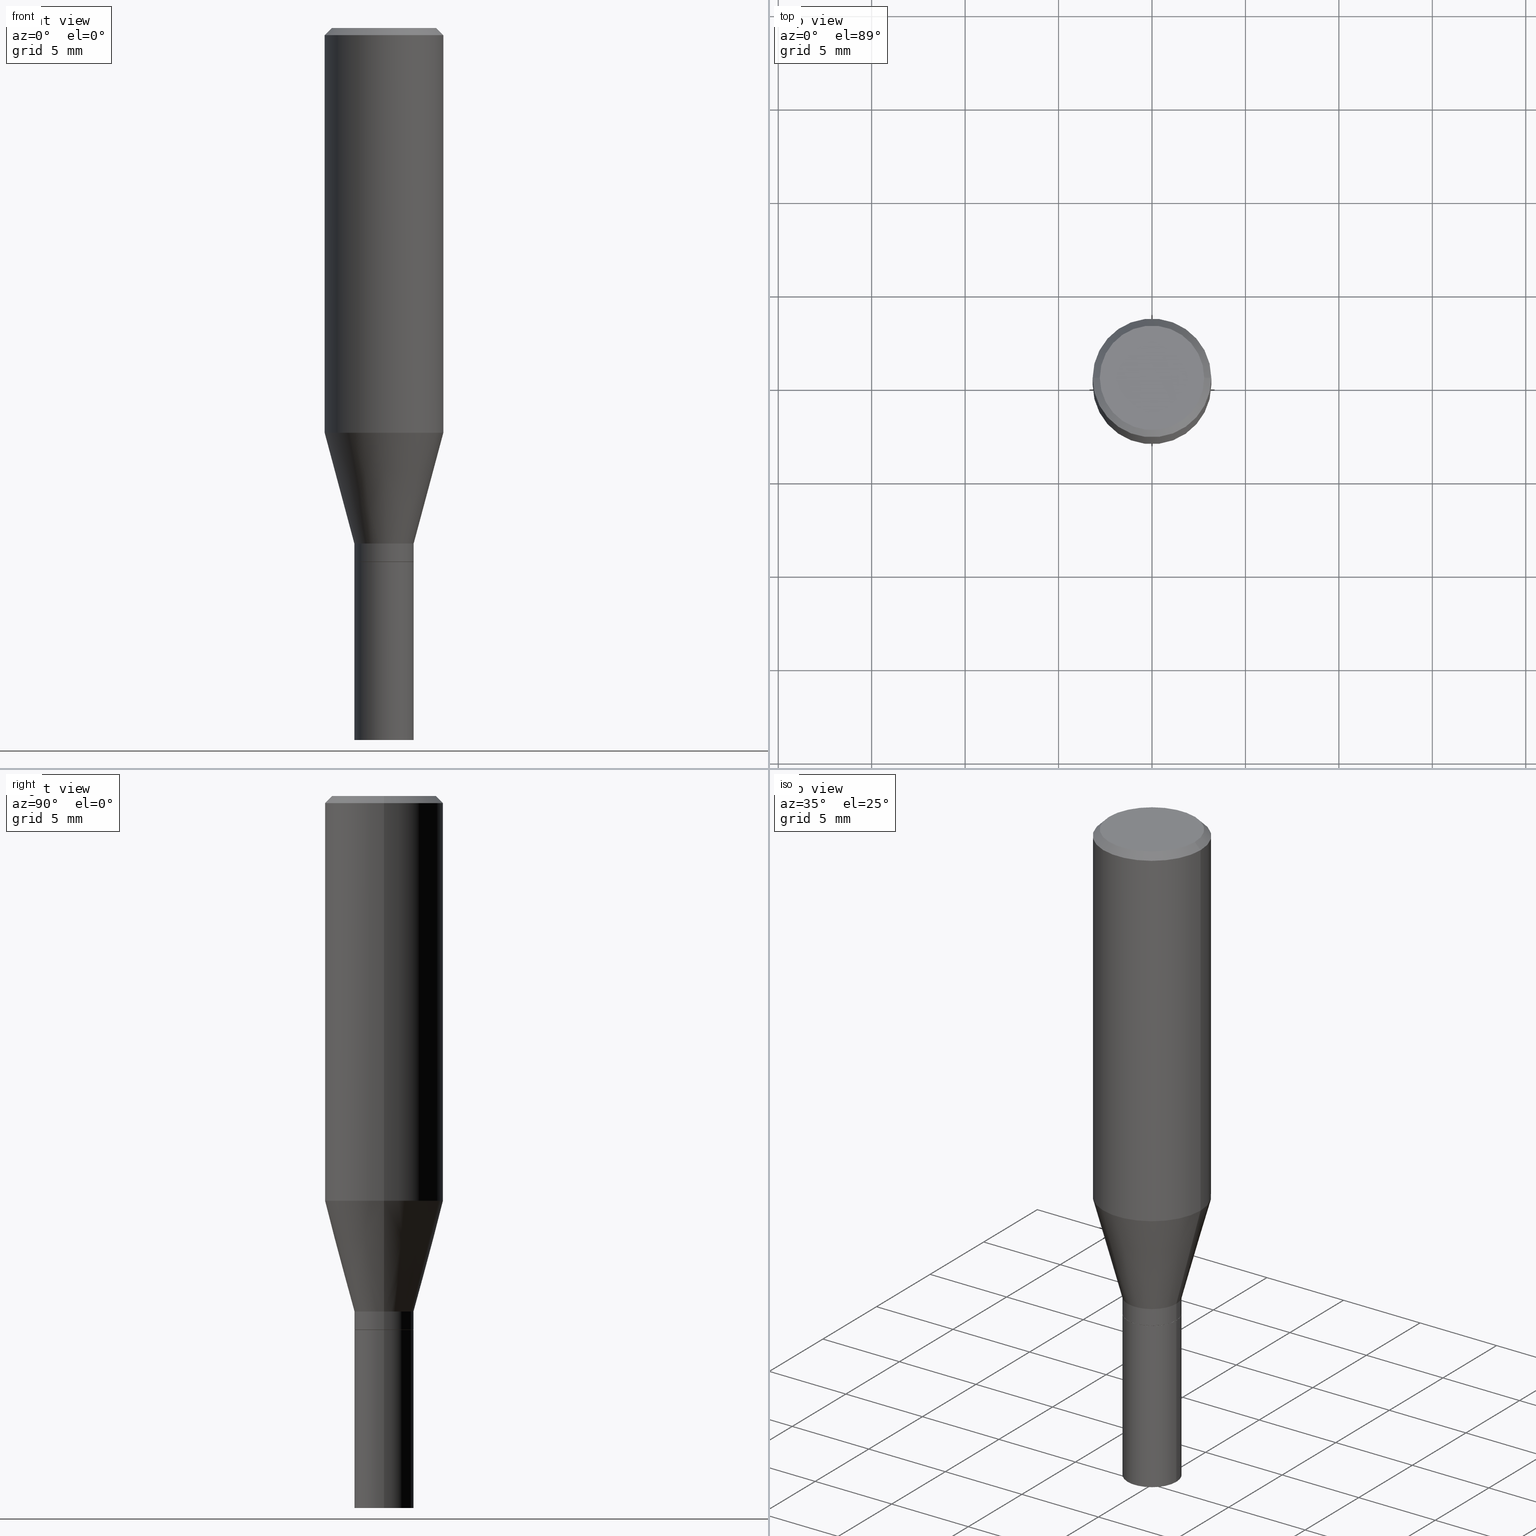
[diagram: canonical four-view strip — front | top / right | iso, engineering-drawing reading convention]
A machine part, canonical four-view strip (front | top / right | iso — engineering-drawing reading convention). The complete STEP part file that produces these views, byte-faithful:
ISO-10303-21;
HEADER;
FILE_DESCRIPTION (( 'STEP AP203' ),
    '1' );
FILE_NAME ('32260.STEP',
    '2024-03-13T16:36:29',
    ( '' ),
    ( '' ),
    'SwSTEP 2.0',
    'SolidWorks 2023',
    '' );
FILE_SCHEMA (( 'CONFIG_CONTROL_DESIGN' ));
ENDSEC;

DATA;
#1 = DIRECTION ( 'NONE',  ( 0.000000000000000000, 0.000000000000000000, 1.000000000000000000 ) ) ;
#2 = ORIENTED_EDGE ( 'NONE', *, *, #362, .F. ) ;
#3 = CYLINDRICAL_SURFACE ( 'NONE', #325, 0.06250000000000005551 ) ;
#4 = AXIS2_PLACEMENT_3D ( 'NONE', #72, #175, #300 ) ;
#5 = ORIENTED_EDGE ( 'NONE', *, *, #270, .F. ) ;
#6 = DATE_AND_TIME ( #348, #307 ) ;
#7 = MANIFOLD_SOLID_BREP ( 'Body-Move/Copy2[2]', #284 ) ;
#8 = ORIENTED_EDGE ( 'NONE', *, *, #135, .T. ) ;
#9 = CARTESIAN_POINT ( 'NONE',  ( 0.06199999999999999956, -4.360860192215087886E-15, -1.125000000000000222 ) ) ;
#10 = ORIENTED_EDGE ( 'NONE', *, *, #258, .F. ) ;
#11 = DIRECTION ( 'NONE',  ( -2.445468806185136597E-29, 3.491481338843145583E-15, 1.000000000000000000 ) ) ;
#12 = DIRECTION ( 'NONE',  ( 1.000000000000000000, -6.982962677686270655E-15, 0.000000000000000000 ) ) ;
#13 = VERTEX_POINT ( 'NONE', #326 ) ;
#14 = AXIS2_PLACEMENT_3D ( 'NONE', #81, #316, #425 ) ;
#15 = FACE_OUTER_BOUND ( 'NONE', #301, .T. ) ;
#16 = ORIENTED_EDGE ( 'NONE', *, *, #137, .T. ) ;
#17 = CYLINDRICAL_SURFACE ( 'NONE', #60, 0.06250000000000000000 ) ;
#18 = DIRECTION ( 'NONE',  ( -0.7071067811865656694, 7.493145998870420424E-15, 0.7071067811865294761 ) ) ;
#19 = CARTESIAN_POINT ( 'NONE',  ( 2.749929672555186430E-29, -3.926170765529117721E-15, -1.124500000000000055 ) ) ;
#20 = CARTESIAN_POINT ( 'NONE',  ( -0.06199999999999999956, -3.487380010027277507E-15, -1.125000000000000222 ) ) ;
#21 = EDGE_CURVE ( 'NONE', #188, #260, #208, .T. ) ;
#22 = VECTOR ( 'NONE', #247, 39.37007874015748143 ) ;
#23 = LOCAL_TIME ( 12, 36, 29.00000000000000000, #267 ) ;
#24 = ORIENTED_EDGE ( 'NONE', *, *, #450, .F. ) ;
#25 = PLANE ( 'NONE',  #446 ) ;
#26 = ORIENTED_EDGE ( 'NONE', *, *, #49, .T. ) ;
#27 = DIRECTION ( 'NONE',  ( 1.000000000000000000, -6.982962677686270655E-15, 0.000000000000000000 ) ) ;
#28 = VECTOR ( 'NONE', #94, 39.37007874015747433 ) ;
#29 = AXIS2_PLACEMENT_3D ( 'NONE', #199, #161, #240 ) ;
#30 = APPROVAL_DATE_TIME ( #368, #126 ) ;
#31 = ORIENTED_EDGE ( 'NONE', *, *, #227, .T. ) ;
#32 = EDGE_CURVE ( 'NONE', #386, #226, #349, .T. ) ;
#33 = AXIS2_PLACEMENT_3D ( 'NONE', #87, #50, #454 ) ;
#34 = EDGE_LOOP ( 'NONE', ( #191, #408, #31, #178 ) ) ;
#35 = CARTESIAN_POINT ( 'NONE',  ( 2.655779123517058654E-29, -3.791748733983656424E-15, -1.086000000000000076 ) ) ;
#36 = EDGE_LOOP ( 'NONE', ( #62, #334 ) ) ;
#37 = DATE_TIME_ROLE ( 'classification_date' ) ;
#38 = DIRECTION ( 'NONE',  ( -2.445468806185136597E-29, 3.491481338843145583E-15, 1.000000000000000000 ) ) ;
#39 = EDGE_LOOP ( 'NONE', ( #376, #373, #140, #296 ) ) ;
#40 = COORDINATED_UNIVERSAL_TIME_OFFSET ( 5, 0, .BEHIND. ) ;
#41 = LINE ( 'NONE', #9, #295 ) ;
#42 = EDGE_LOOP ( 'NONE', ( #439, #163 ) ) ;
#43 = DIRECTION ( 'NONE',  ( 1.000000000000000000, -6.982962677686266711E-15, 4.876176775795935793E-29 ) ) ;
#44 = CONICAL_SURFACE ( 'NONE', #427, 0.1250000000000000000, 0.7853981633974483900 ) ;
#45 = CARTESIAN_POINT ( 'NONE',  ( 0.06250000000000005551, -4.364351673553920638E-16, 3.047610484872462323E-30 ) ) ;
#46 = PRODUCT_DEFINITION_SHAPE ( 'NONE', 'NONE',  #286 ) ;
#47 = DIRECTION ( 'NONE',  ( 1.000000000000000000, -6.982962677686264344E-15, 0.000000000000000000 ) ) ;
#48 = LINE ( 'NONE', #89, #73 ) ;
#49 = EDGE_CURVE ( 'NONE', #386, #431, #218, .T. ) ;
#50 = DIRECTION ( 'NONE',  ( -2.445468806185136597E-29, 3.491481338843145583E-15, 1.000000000000000000 ) ) ;
#51 = CIRCLE ( 'NONE', #210, 0.06250000000000005551 ) ;
#52 = COORDINATED_UNIVERSAL_TIME_OFFSET ( 5, 0, .BEHIND. ) ;
#53 = EDGE_CURVE ( 'NONE', #346, #176, #127, .T. ) ;
#54 = ADVANCED_FACE ( 'NONE', ( #343 ), #445, .T. ) ;
#55 = LINE ( 'NONE', #291, #22 ) ;
#56 = ORIENTED_EDGE ( 'NONE', *, *, #49, .F. ) ;
#57 = EDGE_LOOP ( 'NONE', ( #311, #116, #230, #56 ) ) ;
#58 = CARTESIAN_POINT ( 'NONE',  ( 2.655779123517058654E-29, -3.791748733983656424E-15, -1.086000000000000076 ) ) ;
#59 = DATE_TIME_ROLE ( 'creation_date' ) ;
#60 = AXIS2_PLACEMENT_3D ( 'NONE', #317, #456, #43 ) ;
#61 = LENGTH_MEASURE_WITH_UNIT ( LENGTH_MEASURE( 0.02539999999999999897 ), #372 );
#62 = ORIENTED_EDGE ( 'NONE', *, *, #229, .F. ) ;
#63 = DIMENSIONAL_EXPONENTS ( 1.000000000000000000, 0.000000000000000000, 0.000000000000000000, 0.000000000000000000, 0.000000000000000000, 0.000000000000000000, 0.000000000000000000 ) ;
#64 = APPLICATION_CONTEXT ( 'configuration controlled 3d designs of mechanical parts and assemblies' ) ;
#65 = EDGE_LOOP ( 'NONE', ( #147, #306 ) ) ;
#66 = DIRECTION ( 'NONE',  ( -1.000000000000000000, 6.982962677686266711E-15, 0.000000000000000000 ) ) ;
#67 = CARTESIAN_POINT ( 'NONE',  ( 0.1250000000000000000, -3.850219959304365574E-15, -0.8527468245269461677 ) ) ;
#68 = ORIENTED_EDGE ( 'NONE', *, *, #32, .F. ) ;
#69 = DIRECTION ( 'NONE',  ( -2.445468806185136877E-29, 3.491481338843145188E-15, 1.000000000000000000 ) ) ;
#70 = DIRECTION ( 'NONE',  ( -2.445468806185136597E-29, 3.491481338843145583E-15, 1.000000000000000000 ) ) ;
#71 = AXIS2_PLACEMENT_3D ( 'NONE', #328, #1, #410 ) ;
#72 = CARTESIAN_POINT ( 'NONE',  ( 0.000000000000000000, 0.000000000000000000, 0.000000000000000000 ) ) ;
#73 = VECTOR ( 'NONE', #238, 39.37007874015748143 ) ;
#74 = ORIENTED_EDGE ( 'NONE', *, *, #258, .T. ) ;
#75 = CARTESIAN_POINT ( 'NONE',  ( 0.06250000000000000000, -4.364351673553930894E-15, -1.125000000000000222 ) ) ;
#76 = SECURITY_CLASSIFICATION_LEVEL ( 'unclassified' ) ;
#77 = PERSON_AND_ORGANIZATION_ROLE ( 'creator' ) ;
#78 = ORIENTED_EDGE ( 'NONE', *, *, #361, .T. ) ;
#79 = CARTESIAN_POINT ( 'NONE',  ( 3.668203209277705088E-31, -5.237222008264718399E-17, -0.01499999999999999944 ) ) ;
#80 = ORIENTED_EDGE ( 'NONE', *, *, #53, .T. ) ;
#81 = CARTESIAN_POINT ( 'NONE',  ( 2.655779123517058654E-29, -3.791748733983656424E-15, -1.086000000000000076 ) ) ;
#82 = ADVANCED_FACE ( 'NONE', ( #268 ), #397, .T. ) ;
#83 = FACE_OUTER_BOUND ( 'NONE', #379, .T. ) ;
#84 = DIRECTION ( 'NONE',  ( -2.445468806185136877E-29, 3.491481338843145188E-15, 1.000000000000000000 ) ) ;
#85 = CIRCLE ( 'NONE', #366, 0.06199999999999999956 ) ;
#86 = CARTESIAN_POINT ( 'NONE',  ( 2.085365758954077213E-29, -2.977349624593583024E-15, -0.8527468245269461677 ) ) ;
#87 = CARTESIAN_POINT ( 'NONE',  ( 2.751152406958279232E-29, -3.927916506198539224E-15, -1.125000000000000222 ) ) ;
#88 = CALENDAR_DATE ( 2024, 13, 3 ) ;
#89 = CARTESIAN_POINT ( 'NONE',  ( 0.06250000000000000000, -4.364351673553916694E-16, 3.047610484872459871E-30 ) ) ;
#90 = ADVANCED_FACE ( 'NONE', ( #83 ), #232, .F. ) ;
#91 = DIRECTION ( 'NONE',  ( 1.000000000000000000, -6.982962677686262766E-15, 0.000000000000000000 ) ) ;
#92 = AXIS2_PLACEMENT_3D ( 'NONE', #261, #151, #414 ) ;
#93 = ORGANIZATION ( 'UNSPECIFIED', 'UNSPECIFIED', '' ) ;
#94 = DIRECTION ( 'NONE',  ( -0.2588190451025214611, 5.211531920934551042E-15, 0.9659258262890682012 ) ) ;
#95 = VECTOR ( 'NONE', #18, 39.37007874015748143 ) ;
#96 = CC_DESIGN_SECURITY_CLASSIFICATION ( #221, ( #412 ) ) ;
#97 = CARTESIAN_POINT ( 'NONE',  ( -0.1250000000000000000, -6.266825026379897209E-16, -0.01499999999999999944 ) ) ;
#98 = CARTESIAN_POINT ( 'NONE',  ( 3.668203209277704895E-29, -5.237222008264718177E-15, -1.500000000000000222 ) ) ;
#99 = APPROVAL ( #110, 'UNSPECIFIED' ) ;
#100 = CIRCLE ( 'NONE', #235, 0.06250000000000000000 ) ;
#101 = CC_DESIGN_PERSON_AND_ORGANIZATION_ASSIGNMENT ( #148, #416, ( #412 ) ) ;
#102 = CARTESIAN_POINT ( 'NONE',  ( 2.749929672555186430E-29, -3.926170765529117721E-15, -1.124500000000000055 ) ) ;
#103 = DIRECTION ( 'NONE',  ( 1.000000000000000000, -6.982962677686266711E-15, 0.000000000000000000 ) ) ;
#104 = ORIENTED_EDGE ( 'NONE', *, *, #203, .F. ) ;
#105 = DIRECTION ( 'NONE',  ( -2.445468806185136597E-29, 3.491481338843145583E-15, 1.000000000000000000 ) ) ;
#106 = DIRECTION ( 'NONE',  ( 0.7071067811865656694, -2.468850131082446387E-15, 0.7071067811865294761 ) ) ;
#107 = ORIENTED_EDGE ( 'NONE', *, *, #270, .T. ) ;
#108 = PLANE ( 'NONE',  #92 ) ;
#109 = PERSON_AND_ORGANIZATION_ROLE ( 'design_owner' ) ;
#110 = APPROVAL_STATUS ( 'not_yet_approved' ) ;
#111 = CC_DESIGN_APPROVAL ( #99, ( #412 ) ) ;
#112 = AXIS2_PLACEMENT_3D ( 'NONE', #35, #214, #375 ) ;
#113 = EDGE_LOOP ( 'NONE', ( #365, #184, #26, #384 ) ) ;
#114 = DIRECTION ( 'NONE',  ( 2.445468806185136597E-29, -3.491481338843145583E-15, -1.000000000000000000 ) ) ;
#115 = ADVANCED_FACE ( 'NONE', ( #339 ), #335, .T. ) ;
#116 = ORIENTED_EDGE ( 'NONE', *, *, #320, .T. ) ;
#117 = DIRECTION ( 'NONE',  ( 1.000000000000000000, -6.982962677686270655E-15, 0.000000000000000000 ) ) ;
#118 = CARTESIAN_POINT ( 'NONE',  ( 2.751152406958279232E-29, -3.927916506198539224E-15, -1.125000000000000222 ) ) ;
#119 = DIRECTION ( 'NONE',  ( 0.7071067811865475727, -7.319954787623256045E-15, -0.7071067811865474617 ) ) ;
#120 = EDGE_CURVE ( 'NONE', #342, #136, #190, .T. ) ;
#121 = CIRCLE ( 'NONE', #33, 0.06250000000000000000 ) ;
#122 = CARTESIAN_POINT ( 'NONE',  ( -0.1250000000000000000, -2.089171204893457398E-15, -0.8527468245269461677 ) ) ;
#123 = APPROVAL_PERSON_ORGANIZATION ( #418, #165, #385 ) ;
#124 = FACE_OUTER_BOUND ( 'NONE', #403, .T. ) ;
#125 = DIRECTION ( 'NONE',  ( -2.445468806185136597E-29, 3.491481338843145583E-15, 1.000000000000000000 ) ) ;
#126 = APPROVAL ( #415, 'UNSPECIFIED' ) ;
#127 = CIRCLE ( 'NONE', #461, 0.1250000000000000000 ) ;
#128 = CONICAL_SURFACE ( 'NONE', #112, 0.06250000000000005551, 0.2617993877991501295 ) ;
#129 = CALENDAR_DATE ( 2024, 13, 3 ) ;
#130 = DIRECTION ( 'NONE',  ( 1.000000000000000000, -6.982962677686266711E-15, 4.876176775795935232E-29 ) ) ;
#131 = CARTESIAN_POINT ( 'NONE',  ( 2.751152406958279232E-29, -3.927916506198539224E-15, -1.125000000000000222 ) ) ;
#132 = APPROVAL_PERSON_ORGANIZATION ( #262, #126, #380 ) ;
#133 = ADVANCED_FACE ( 'NONE', ( #213 ), #108, .F. ) ;
#134 = AXIS2_PLACEMENT_3D ( 'NONE', #259, #38, #333 ) ;
#135 = EDGE_CURVE ( 'NONE', #136, #404, #312, .T. ) ;
#136 = VERTEX_POINT ( 'NONE', #141 ) ;
#137 = EDGE_CURVE ( 'NONE', #346, #448, #302, .T. ) ;
#138 =( CONVERSION_BASED_UNIT ( 'INCH', #61 ) LENGTH_UNIT ( ) NAMED_UNIT ( #63 ) );
#139 = PERSON_AND_ORGANIZATION ( #168, #93 ) ;
#140 = ORIENTED_EDGE ( 'NONE', *, *, #429, .F. ) ;
#141 = CARTESIAN_POINT ( 'NONE',  ( -0.1100000000000000006, 7.943120045868128186E-16, -7.674416657726847932E-18 ) ) ;
#142 = SHAPE_DEFINITION_REPRESENTATION ( #46, #388 ) ;
#143 = ORIENTED_EDGE ( 'NONE', *, *, #120, .F. ) ;
#144 = CARTESIAN_POINT ( 'NONE',  ( 2.085365758954077213E-29, -2.977349624593583024E-15, -0.8527468245269461677 ) ) ;
#145 = MANIFOLD_SOLID_BREP ( 'Body-Move/Copy2[1]', #219 ) ;
#146 = CARTESIAN_POINT ( 'NONE',  ( 0.000000000000000000, 0.000000000000000000, 0.000000000000000000 ) ) ;
#147 = ORIENTED_EDGE ( 'NONE', *, *, #361, .F. ) ;
#148 = PERSON_AND_ORGANIZATION ( #168, #93 ) ;
#149 = CC_DESIGN_APPROVAL ( #165, ( #221 ) ) ;
#150 = VERTEX_POINT ( 'NONE', #354 ) ;
#151 = DIRECTION ( 'NONE',  ( -2.438088387897960049E-29, 3.491481338843145188E-15, 1.000000000000000000 ) ) ;
#152 = CARTESIAN_POINT ( 'NONE',  ( 2.655779123517058654E-29, -3.791748733983656424E-15, -1.086000000000000076 ) ) ;
#153 = CARTESIAN_POINT ( 'NONE',  ( 0.06250000000000005551, -4.362605932884510179E-15, -1.124500000000000055 ) ) ;
#154 = ORIENTED_EDGE ( 'NONE', *, *, #323, .F. ) ;
#155 = DIRECTION ( 'NONE',  ( -2.445468806185136597E-29, 3.491481338843145583E-15, 1.000000000000000000 ) ) ;
#156 = FACE_OUTER_BOUND ( 'NONE', #34, .T. ) ;
#157 = CARTESIAN_POINT ( 'NONE',  ( -0.06250000000000005551, -2.718415364513525405E-15, -1.086000000000000076 ) ) ;
#158 = CIRCLE ( 'NONE', #290, 0.1250000000000000000 ) ;
#159 = CARTESIAN_POINT ( 'NONE',  ( 3.668203209277705088E-31, -5.237222008264718399E-17, -0.01499999999999999944 ) ) ;
#160 = CARTESIAN_POINT ( 'NONE',  ( 0.000000000000000000, 0.000000000000000000, 0.000000000000000000 ) ) ;
#161 = DIRECTION ( 'NONE',  ( -2.445468806185136597E-29, 3.491481338843145583E-15, 1.000000000000000000 ) ) ;
#162 = AXIS2_PLACEMENT_3D ( 'NONE', #160, #399, #460 ) ;
#163 = ORIENTED_EDGE ( 'NONE', *, *, #244, .T. ) ;
#164 = DATE_AND_TIME ( #129, #319 ) ;
#165 = APPROVAL ( #331, 'UNSPECIFIED' ) ;
#166 = DIRECTION ( 'NONE',  ( -1.000000000000000000, 6.982962677686265922E-15, -4.876176775795935793E-29 ) ) ;
#167 = ORIENTED_EDGE ( 'NONE', *, *, #203, .T. ) ;
#168 = PERSON ( 'UNSPECIFIED', 'UNSPECIFIED', 'UNSPECIFIED', ('UNSPECIFIED'), ('UNSPECIFIED'), ('UNSPECIFIED') ) ;
#169 = EDGE_LOOP ( 'NONE', ( #24, #255, #303, #419 ) ) ;
#170 = LINE ( 'NONE', #430, #28 ) ;
#171 = CIRCLE ( 'NONE', #457, 0.1250000000000000000 ) ;
#172 = EDGE_CURVE ( 'NONE', #342, #448, #237, .T. ) ;
#173 = ORIENTED_EDGE ( 'NONE', *, *, #433, .T. ) ;
#174 = ADVANCED_FACE ( 'NONE', ( #124 ), #356, .T. ) ;
#175 = DIRECTION ( 'NONE',  ( -2.445468806185136597E-29, 3.491481338843145583E-15, 1.000000000000000000 ) ) ;
#176 = VERTEX_POINT ( 'NONE', #122 ) ;
#177 = VECTOR ( 'NONE', #119, 39.37007874015748143 ) ;
#178 = ORIENTED_EDGE ( 'NONE', *, *, #244, .F. ) ;
#179 = DIRECTION ( 'NONE',  ( -1.000000000000000000, 6.982962677686265922E-15, -4.876176775795935793E-29 ) ) ;
#180 =( NAMED_UNIT ( * ) SI_UNIT ( $, .STERADIAN. ) SOLID_ANGLE_UNIT ( ) );
#181 = DIRECTION ( 'NONE',  ( -2.445468806185136877E-29, 3.491481338843145188E-15, 1.000000000000000000 ) ) ;
#182 = DIRECTION ( 'NONE',  ( -2.445468806185136597E-29, 3.491481338843145583E-15, 1.000000000000000000 ) ) ;
#183 = EDGE_CURVE ( 'NONE', #226, #386, #51, .T. ) ;
#184 = ORIENTED_EDGE ( 'NONE', *, *, #183, .T. ) ;
#185 = APPLICATION_PROTOCOL_DEFINITION ( 'international standard', 'config_control_design', 1994, #64 ) ;
#186 = DIRECTION ( 'NONE',  ( 1.000000000000000000, -6.982962677686262766E-15, 0.000000000000000000 ) ) ;
#187 = DIRECTION ( 'NONE',  ( 0.2588190451025214611, 1.565188264969621573E-15, 0.9659258262890682012 ) ) ;
#188 = VERTEX_POINT ( 'NONE', #195 ) ;
#189 = LINE ( 'NONE', #383, #239 ) ;
#190 = CIRCLE ( 'NONE', #278, 0.1100000000000000006 ) ;
#191 = ORIENTED_EDGE ( 'NONE', *, *, #432, .F. ) ;
#192 = FACE_OUTER_BOUND ( 'NONE', #57, .T. ) ;
#193 = CC_DESIGN_PERSON_AND_ORGANIZATION_ASSIGNMENT ( #139, #77, ( #286 ) ) ;
#194 = DIRECTION ( 'NONE',  ( 1.000000000000000000, -6.982962677686266711E-15, 0.000000000000000000 ) ) ;
#195 = CARTESIAN_POINT ( 'NONE',  ( -0.06250000000000000000, -4.138480047381566479E-15, -1.500000000000000222 ) ) ;
#196 = APPROVAL_PERSON_ORGANIZATION ( #330, #99, #377 ) ;
#197 = VECTOR ( 'NONE', #181, 39.37007874015748143 ) ;
#198 = VECTOR ( 'NONE', #187, 39.37007874015747433 ) ;
#199 = CARTESIAN_POINT ( 'NONE',  ( 1.876754654212523840E-46, -2.679508254694119990E-32, -7.674416657721384454E-18 ) ) ;
#200 = AXIS2_PLACEMENT_3D ( 'NONE', #424, #276, #322 ) ;
#201 = ADVANCED_FACE ( 'NONE', ( #280 ), #282, .F. ) ;
#202 = LOCAL_TIME ( 12, 36, 29.00000000000000000, #263 ) ;
#203 = EDGE_CURVE ( 'NONE', #448, #404, #171, .T. ) ;
#204 = CARTESIAN_POINT ( 'NONE',  ( 7.681258945454893776E-16, 0.1100000000000000006, -3.879001556016067477E-16 ) ) ;
#205 = ORIENTED_EDGE ( 'NONE', *, *, #207, .T. ) ;
#206 = ORIENTED_EDGE ( 'NONE', *, *, #137, .F. ) ;
#207 = EDGE_CURVE ( 'NONE', #431, #272, #465, .T. ) ;
#208 = CIRCLE ( 'NONE', #289, 0.06250000000000000000 ) ;
#209 = DIRECTION ( 'NONE',  ( -2.445468806185136597E-29, 3.491481338843145583E-15, 1.000000000000000000 ) ) ;
#210 = AXIS2_PLACEMENT_3D ( 'NONE', #19, #458, #47 ) ;
#211 = DIRECTION ( 'NONE',  ( -0.7071067811865475727, 2.468850131082257455E-15, -0.7071067811865474617 ) ) ;
#212 = VERTEX_POINT ( 'NONE', #459 ) ;
#213 = FACE_OUTER_BOUND ( 'NONE', #36, .T. ) ;
#214 = DIRECTION ( 'NONE',  ( -2.445468806185136597E-29, 3.491481338843145583E-15, 1.000000000000000000 ) ) ;
#215 = EDGE_LOOP ( 'NONE', ( #143, #453, #167, #338 ) ) ;
#216 = LOCAL_TIME ( 12, 36, 29.00000000000000000, #308 ) ;
#217 = MECHANICAL_CONTEXT ( 'NONE', #428, 'mechanical' ) ;
#218 = LINE ( 'NONE', #45, #197 ) ;
#219 = CLOSED_SHELL ( 'NONE', ( #275, #133, #401, #451 ) ) ;
#220 = AXIS2_PLACEMENT_3D ( 'NONE', #86, #155, #359 ) ;
#221 = SECURITY_CLASSIFICATION ( '', '', #76 ) ;
#222 = CARTESIAN_POINT ( 'NONE',  ( -0.1250000000000000000, 8.881784197001252323E-16, -6.148668862818632227E-30 ) ) ;
#223 = EDGE_LOOP ( 'NONE', ( #78, #74, #68, #440 ) ) ;
#224 = PERSON_AND_ORGANIZATION ( #168, #93 ) ;
#225 = FACE_OUTER_BOUND ( 'NONE', #252, .T. ) ;
#226 = VERTEX_POINT ( 'NONE', #321 ) ;
#227 = EDGE_CURVE ( 'NONE', #260, #463, #48, .T. ) ;
#228 = LINE ( 'NONE', #222, #264 ) ;
#229 = EDGE_CURVE ( 'NONE', #260, #188, #358, .T. ) ;
#230 = ORIENTED_EDGE ( 'NONE', *, *, #207, .F. ) ;
#231 = CARTESIAN_POINT ( 'NONE',  ( 0.000000000000000000, 0.000000000000000000, 0.000000000000000000 ) ) ;
#232 = PLANE ( 'NONE',  #394 ) ;
#233 = AXIS2_PLACEMENT_3D ( 'NONE', #152, #313, #273 ) ;
#234 = CARTESIAN_POINT ( 'NONE',  ( 0.1100000000000000006, -8.322946247794786836E-16, -7.674416657715788472E-18 ) ) ;
#235 = AXIS2_PLACEMENT_3D ( 'NONE', #242, #396, #464 ) ;
#236 = LINE ( 'NONE', #20, #95 ) ;
#237 = LINE ( 'NONE', #391, #177 ) ;
#238 = DIRECTION ( 'NONE',  ( -2.445468806185136877E-29, 3.491481338843145188E-15, 1.000000000000000000 ) ) ;
#239 = VECTOR ( 'NONE', #84, 39.37007874015748143 ) ;
#240 = DIRECTION ( 'NONE',  ( 1.000000000000000000, -6.982962677686266711E-15, 4.876001053725558154E-29 ) ) ;
#241 = AXIS2_PLACEMENT_3D ( 'NONE', #58, #209, #367 ) ;
#242 = CARTESIAN_POINT ( 'NONE',  ( 2.751152406958279232E-29, -3.927916506198539224E-15, -1.125000000000000222 ) ) ;
#243 = PRODUCT_RELATED_PRODUCT_CATEGORY ( 'detail', '', ( #369 ) ) ;
#244 = EDGE_CURVE ( 'NONE', #212, #463, #121, .T. ) ;
#245 = AXIS2_PLACEMENT_3D ( 'NONE', #422, #125, #91 ) ;
#246 = FACE_OUTER_BOUND ( 'NONE', #42, .T. ) ;
#247 = DIRECTION ( 'NONE',  ( -2.445468806185136877E-29, 3.491481338843145188E-15, 1.000000000000000000 ) ) ;
#248 = CARTESIAN_POINT ( 'NONE',  ( 0.1250000000000000000, -9.252425547934304180E-16, -0.01499999999999999944 ) ) ;
#249 = ORIENTED_EDGE ( 'NONE', *, *, #172, .F. ) ;
#250 =( NAMED_UNIT ( * ) PLANE_ANGLE_UNIT ( ) SI_UNIT ( $, .RADIAN. ) );
#251 = AXIS2_PLACEMENT_3D ( 'NONE', #118, #182, #274 ) ;
#252 = EDGE_LOOP ( 'NONE', ( #80, #329, #104, #206 ) ) ;
#253 = DIRECTION ( 'NONE',  ( 2.438088387897960049E-29, -3.491481338843145188E-15, -1.000000000000000000 ) ) ;
#254 = CYLINDRICAL_SURFACE ( 'NONE', #134, 0.1250000000000000000 ) ;
#255 = ORIENTED_EDGE ( 'NONE', *, *, #455, .T. ) ;
#256 = EDGE_CURVE ( 'NONE', #176, #346, #309, .T. ) ;
#257 = CARTESIAN_POINT ( 'NONE',  ( 0.1250000000000000000, -8.728703347107833388E-16, 6.095220969744919741E-30 ) ) ;
#258 = EDGE_CURVE ( 'NONE', #150, #226, #236, .T. ) ;
#259 = CARTESIAN_POINT ( 'NONE',  ( 0.000000000000000000, 0.000000000000000000, 0.000000000000000000 ) ) ;
#260 = VERTEX_POINT ( 'NONE', #393 ) ;
#261 = CARTESIAN_POINT ( 'NONE',  ( 3.576687321579069994E-29, -5.368277968210015545E-15, -1.500000000000000222 ) ) ;
#262 = PERSON_AND_ORGANIZATION ( #168, #93 ) ;
#263 = COORDINATED_UNIVERSAL_TIME_OFFSET ( 5, 0, .BEHIND. ) ;
#264 = VECTOR ( 'NONE', #378, 39.37007874015748143 ) ;
#265 = ORIENTED_EDGE ( 'NONE', *, *, #360, .F. ) ;
#266 = CARTESIAN_POINT ( 'NONE',  ( 1.876754654212523840E-46, -2.679508254694119990E-32, -7.674416657721384454E-18 ) ) ;
#267 = COORDINATED_UNIVERSAL_TIME_OFFSET ( 5, 0, .BEHIND. ) ;
#268 = FACE_OUTER_BOUND ( 'NONE', #169, .T. ) ;
#269 = CALENDAR_DATE ( 2024, 13, 3 ) ;
#270 = EDGE_CURVE ( 'NONE', #136, #342, #285, .T. ) ;
#271 = DIRECTION ( 'NONE',  ( -1.000000000000000000, 6.982962677686266711E-15, 0.000000000000000000 ) ) ;
#272 = VERTEX_POINT ( 'NONE', #157 ) ;
#273 = DIRECTION ( 'NONE',  ( 1.000000000000000000, -6.982962677686264344E-15, 0.000000000000000000 ) ) ;
#274 = DIRECTION ( 'NONE',  ( 1.000000000000000000, -6.982962677686270655E-15, 0.000000000000000000 ) ) ;
#275 = ADVANCED_FACE ( 'NONE', ( #387 ), #17, .T. ) ;
#276 = DIRECTION ( 'NONE',  ( -2.438088387897960049E-29, 3.491481338843145188E-15, 1.000000000000000000 ) ) ;
#277 = ADVANCED_FACE ( 'NONE', ( #192 ), #353, .T. ) ;
#278 = AXIS2_PLACEMENT_3D ( 'NONE', #266, #441, #409 ) ;
#279 =( GEOMETRIC_REPRESENTATION_CONTEXT ( 3 ) GLOBAL_UNCERTAINTY_ASSIGNED_CONTEXT ( ( #466 ) ) GLOBAL_UNIT_ASSIGNED_CONTEXT ( ( #138, #250, #180 ) ) REPRESENTATION_CONTEXT ( 'NONE', 'WORKASPACE' ) );
#280 = FACE_OUTER_BOUND ( 'NONE', #65, .T. ) ;
#281 = CYLINDRICAL_SURFACE ( 'NONE', #162, 0.06250000000000000000 ) ;
#282 = PLANE ( 'NONE',  #200 ) ;
#283 = DIRECTION ( 'NONE',  ( -2.445468806185136597E-29, 3.491481338843145583E-15, 1.000000000000000000 ) ) ;
#284 = CLOSED_SHELL ( 'NONE', ( #277, #54, #115, #324, #371, #82, #174, #332, #90, #201, #395, #398 ) ) ;
#285 = CIRCLE ( 'NONE', #29, 0.1100000000000000006 ) ;
#286 = PRODUCT_DEFINITION ( 'UNKNOWN', '', #412, #293 ) ;
#287 = CARTESIAN_POINT ( 'NONE',  ( 0.06250000000000005551, -4.228183901339048093E-15, -1.086000000000000076 ) ) ;
#288 = DIRECTION ( 'NONE',  ( -2.445468806185136597E-29, 3.491481338843145583E-15, 1.000000000000000000 ) ) ;
#289 = AXIS2_PLACEMENT_3D ( 'NONE', #98, #105, #186 ) ;
#290 = AXIS2_PLACEMENT_3D ( 'NONE', #79, #438, #103 ) ;
#291 = CARTESIAN_POINT ( 'NONE',  ( -0.06250000000000000000, 4.440892098500626162E-16, -3.074334431409316114E-30 ) ) ;
#292 = EDGE_LOOP ( 'NONE', ( #10, #173, #436, #413 ) ) ;
#293 = DESIGN_CONTEXT ( 'detailed design', #64, 'design' ) ;
#294 = ORIENTED_EDGE ( 'NONE', *, *, #53, .F. ) ;
#295 = VECTOR ( 'NONE', #106, 39.37007874015748143 ) ;
#296 = ORIENTED_EDGE ( 'NONE', *, *, #227, .F. ) ;
#297 = CIRCLE ( 'NONE', #241, 0.06250000000000005551 ) ;
#298 = EDGE_CURVE ( 'NONE', #13, #386, #41, .T. ) ;
#299 = CC_DESIGN_PERSON_AND_ORGANIZATION_ASSIGNMENT ( #406, #374, ( #412 ) ) ;
#300 = DIRECTION ( 'NONE',  ( 1.000000000000000000, -6.982962677686266711E-15, 4.876176775795935232E-29 ) ) ;
#301 = EDGE_LOOP ( 'NONE', ( #205, #315, #294, #265 ) ) ;
#302 = LINE ( 'NONE', #257, #437 ) ;
#303 = ORIENTED_EDGE ( 'NONE', *, *, #360, .T. ) ;
#304 = PERSON_AND_ORGANIZATION ( #168, #93 ) ;
#305 = FACE_OUTER_BOUND ( 'NONE', #352, .T. ) ;
#306 = ORIENTED_EDGE ( 'NONE', *, *, #433, .F. ) ;
#307 = LOCAL_TIME ( 12, 36, 29.00000000000000000, #40 ) ;
#308 = COORDINATED_UNIVERSAL_TIME_OFFSET ( 5, 0, .BEHIND. ) ;
#309 = CIRCLE ( 'NONE', #220, 0.1250000000000000000 ) ;
#310 = DIRECTION ( 'NONE',  ( 2.445468806185136597E-29, -3.491481338843145583E-15, -1.000000000000000000 ) ) ;
#311 = ORIENTED_EDGE ( 'NONE', *, *, #32, .T. ) ;
#312 = LINE ( 'NONE', #420, #318 ) ;
#313 = DIRECTION ( 'NONE',  ( -2.445468806185136597E-29, 3.491481338843145583E-15, 1.000000000000000000 ) ) ;
#314 = APPROVAL_DATE_TIME ( #6, #165 ) ;
#315 = ORIENTED_EDGE ( 'NONE', *, *, #450, .T. ) ;
#316 = DIRECTION ( 'NONE',  ( -2.445468806185136597E-29, 3.491481338843145583E-15, 1.000000000000000000 ) ) ;
#317 = CARTESIAN_POINT ( 'NONE',  ( 0.000000000000000000, 0.000000000000000000, 0.000000000000000000 ) ) ;
#318 = VECTOR ( 'NONE', #211, 39.37007874015748143 ) ;
#319 = LOCAL_TIME ( 12, 36, 29.00000000000000000, #52 ) ;
#320 = EDGE_CURVE ( 'NONE', #226, #272, #189, .T. ) ;
#321 = CARTESIAN_POINT ( 'NONE',  ( -0.06250000000000005551, -3.482081555679054710E-15, -1.124500000000000055 ) ) ;
#322 = DIRECTION ( 'NONE',  ( 1.000000000000000000, -6.982962677686265922E-15, 4.876176775795935793E-29 ) ) ;
#323 = EDGE_CURVE ( 'NONE', #404, #448, #158, .T. ) ;
#324 = ADVANCED_FACE ( 'NONE', ( #225 ), #254, .T. ) ;
#325 = AXIS2_PLACEMENT_3D ( 'NONE', #146, #442, #130 ) ;
#326 = CARTESIAN_POINT ( 'NONE',  ( 0.06199999999999999956, -4.360860192215087886E-15, -1.125000000000000222 ) ) ;
#327 = DIRECTION ( 'NONE',  ( 2.438088387897960049E-29, -3.491481338843145188E-15, -1.000000000000000000 ) ) ;
#328 = CARTESIAN_POINT ( 'NONE',  ( 0.000000000000000000, 0.000000000000000000, 0.000000000000000000 ) ) ;
#329 = ORIENTED_EDGE ( 'NONE', *, *, #362, .T. ) ;
#330 = PERSON_AND_ORGANIZATION ( #168, #93 ) ;
#331 = APPROVAL_STATUS ( 'not_yet_approved' ) ;
#332 = ADVANCED_FACE ( 'NONE', ( #305 ), #44, .T. ) ;
#333 = DIRECTION ( 'NONE',  ( 1.000000000000000000, -6.982962677686266711E-15, 4.876176775795935793E-29 ) ) ;
#334 = ORIENTED_EDGE ( 'NONE', *, *, #21, .F. ) ;
#335 = CONICAL_SURFACE ( 'NONE', #423, 0.1250000000000000000, 0.7853981633974483900 ) ;
#336 = DIRECTION ( 'NONE',  ( 1.000000000000000000, -6.982962677686264344E-15, 0.000000000000000000 ) ) ;
#337 = DATE_AND_TIME ( #449, #216 ) ;
#338 = ORIENTED_EDGE ( 'NONE', *, *, #135, .F. ) ;
#339 = FACE_OUTER_BOUND ( 'NONE', #215, .T. ) ;
#340 = DIRECTION ( 'NONE',  ( -2.445468806185136597E-29, 3.491481338843145583E-15, 1.000000000000000000 ) ) ;
#341 = FACE_OUTER_BOUND ( 'NONE', #113, .T. ) ;
#342 = VERTEX_POINT ( 'NONE', #234 ) ;
#343 = FACE_OUTER_BOUND ( 'NONE', #223, .T. ) ;
#344 = DATE_AND_TIME ( #269, #202 ) ;
#345 = CARTESIAN_POINT ( 'NONE',  ( 2.751152406958279232E-29, -3.927916506198539224E-15, -1.125000000000000222 ) ) ;
#346 = VERTEX_POINT ( 'NONE', #67 ) ;
#347 = CARTESIAN_POINT ( 'NONE',  ( 2.751152406958279232E-29, -3.927916506198539224E-15, -1.125000000000000222 ) ) ;
#348 = CALENDAR_DATE ( 2024, 13, 3 ) ;
#349 = CIRCLE ( 'NONE', #357, 0.06250000000000005551 ) ;
#350 = CIRCLE ( 'NONE', #389, 0.06199999999999999956 ) ;
#351 = CARTESIAN_POINT ( 'NONE',  ( 0.06250000000000005551, -4.228183901339048093E-15, -1.086000000000000076 ) ) ;
#352 = EDGE_LOOP ( 'NONE', ( #249, #5, #8, #434 ) ) ;
#353 = CYLINDRICAL_SURFACE ( 'NONE', #4, 0.06250000000000005551 ) ;
#354 = CARTESIAN_POINT ( 'NONE',  ( -0.06199999999999999956, -3.484730782853165911E-15, -1.125000000000000222 ) ) ;
#355 = CC_DESIGN_PERSON_AND_ORGANIZATION_ASSIGNMENT ( #224, #382, ( #221 ) ) ;
#356 = CYLINDRICAL_SURFACE ( 'NONE', #363, 0.1250000000000000000 ) ;
#357 = AXIS2_PLACEMENT_3D ( 'NONE', #102, #70, #336 ) ;
#358 = CIRCLE ( 'NONE', #245, 0.06250000000000000000 ) ;
#359 = DIRECTION ( 'NONE',  ( 1.000000000000000000, -6.982962677686266711E-15, 0.000000000000000000 ) ) ;
#360 = EDGE_CURVE ( 'NONE', #431, #346, #411, .T. ) ;
#361 = EDGE_CURVE ( 'NONE', #13, #150, #350, .T. ) ;
#362 = EDGE_CURVE ( 'NONE', #176, #404, #228, .T. ) ;
#363 = AXIS2_PLACEMENT_3D ( 'NONE', #231, #392, #426 ) ;
#364 = CARTESIAN_POINT ( 'NONE',  ( 4.364351673554191316E-16, 0.06249999999999607259, -1.125000000000000444 ) ) ;
#365 = ORIENTED_EDGE ( 'NONE', *, *, #320, .F. ) ;
#366 = AXIS2_PLACEMENT_3D ( 'NONE', #131, #288, #27 ) ;
#367 = DIRECTION ( 'NONE',  ( 1.000000000000000000, -6.982962677686264344E-15, 0.000000000000000000 ) ) ;
#368 = DATE_AND_TIME ( #88, #23 ) ;
#369 = PRODUCT ( '32260', '32260', '', ( #217 ) ) ;
#370 = CC_DESIGN_DATE_AND_TIME_ASSIGNMENT ( #337, #37, ( #221 ) ) ;
#371 = ADVANCED_FACE ( 'NONE', ( #15 ), #128, .T. ) ;
#372 =( LENGTH_UNIT ( ) NAMED_UNIT ( * ) SI_UNIT ( $, .METRE. ) );
#373 = ORIENTED_EDGE ( 'NONE', *, *, #432, .T. ) ;
#374 = PERSON_AND_ORGANIZATION_ROLE ( 'design_supplier' ) ;
#375 = DIRECTION ( 'NONE',  ( 1.000000000000000000, -6.982962677686264344E-15, 0.000000000000000000 ) ) ;
#376 = ORIENTED_EDGE ( 'NONE', *, *, #229, .T. ) ;
#377 = APPROVAL_ROLE ( '' ) ;
#378 = DIRECTION ( 'NONE',  ( -2.445468806185136877E-29, 3.491481338843145188E-15, 1.000000000000000000 ) ) ;
#379 = EDGE_LOOP ( 'NONE', ( #107, #444 ) ) ;
#380 = APPROVAL_ROLE ( '' ) ;
#381 = DIRECTION ( 'NONE',  ( 1.000000000000000000, -6.982962677686266711E-15, 0.000000000000000000 ) ) ;
#382 = PERSON_AND_ORGANIZATION_ROLE ( 'classification_officer' ) ;
#383 = CARTESIAN_POINT ( 'NONE',  ( -0.06250000000000005551, 4.440892098500630106E-16, -3.074334431409318916E-30 ) ) ;
#384 = ORIENTED_EDGE ( 'NONE', *, *, #455, .F. ) ;
#385 = APPROVAL_ROLE ( '' ) ;
#386 = VERTEX_POINT ( 'NONE', #153 ) ;
#387 = FACE_OUTER_BOUND ( 'NONE', #39, .T. ) ;
#388 = ADVANCED_BREP_SHAPE_REPRESENTATION ( '32260', ( #145, #7, #71 ), #279 ) ;
#389 = AXIS2_PLACEMENT_3D ( 'NONE', #345, #421, #12 ) ;
#390 = CC_DESIGN_PERSON_AND_ORGANIZATION_ASSIGNMENT ( #304, #109, ( #369 ) ) ;
#391 = CARTESIAN_POINT ( 'NONE',  ( 0.1250000000000000000, -9.099344698040885245E-16, -0.01499999999999999944 ) ) ;
#392 = DIRECTION ( 'NONE',  ( -2.445468806185136597E-29, 3.491481338843145583E-15, 1.000000000000000000 ) ) ;
#393 = CARTESIAN_POINT ( 'NONE',  ( 0.06250000000000000000, -5.673657175620109846E-15, -1.500000000000000222 ) ) ;
#394 = AXIS2_PLACEMENT_3D ( 'NONE', #204, #253, #179 ) ;
#395 = ADVANCED_FACE ( 'NONE', ( #452 ), #462, .T. ) ;
#396 = DIRECTION ( 'NONE',  ( -2.445468806185136597E-29, 3.491481338843145583E-15, 1.000000000000000000 ) ) ;
#397 = CONICAL_SURFACE ( 'NONE', #233, 0.06250000000000005551, 0.2617993877991501295 ) ;
#398 = ADVANCED_FACE ( 'NONE', ( #341 ), #3, .T. ) ;
#399 = DIRECTION ( 'NONE',  ( -2.445468806185136597E-29, 3.491481338843145583E-15, 1.000000000000000000 ) ) ;
#400 = CC_DESIGN_DATE_AND_TIME_ASSIGNMENT ( #164, #59, ( #286 ) ) ;
#401 = ADVANCED_FACE ( 'NONE', ( #156 ), #281, .T. ) ;
#402 = AXIS2_PLACEMENT_3D ( 'NONE', #347, #11, #117 ) ;
#403 = EDGE_LOOP ( 'NONE', ( #2, #417, #16, #154 ) ) ;
#404 = VERTEX_POINT ( 'NONE', #97 ) ;
#405 = CARTESIAN_POINT ( 'NONE',  ( 3.668203209277705088E-31, -5.237222008264718399E-17, -0.01499999999999999944 ) ) ;
#406 = PERSON_AND_ORGANIZATION ( #168, #93 ) ;
#407 = CARTESIAN_POINT ( 'NONE',  ( 3.668203209277705088E-31, -5.237222008264718399E-17, -0.01499999999999999944 ) ) ;
#408 = ORIENTED_EDGE ( 'NONE', *, *, #21, .T. ) ;
#409 = DIRECTION ( 'NONE',  ( 1.000000000000000000, -6.982962677686266711E-15, 4.876001053725558154E-29 ) ) ;
#410 = DIRECTION ( 'NONE',  ( 1.000000000000000000, 0.000000000000000000, 0.000000000000000000 ) ) ;
#411 = LINE ( 'NONE', #351, #198 ) ;
#412 = PRODUCT_DEFINITION_FORMATION_WITH_SPECIFIED_SOURCE ( 'ANY', '', #369, .NOT_KNOWN. ) ;
#413 = ORIENTED_EDGE ( 'NONE', *, *, #183, .F. ) ;
#414 = DIRECTION ( 'NONE',  ( 1.000000000000000000, -6.982962677686265922E-15, 4.876176775795935793E-29 ) ) ;
#415 = APPROVAL_STATUS ( 'not_yet_approved' ) ;
#416 = PERSON_AND_ORGANIZATION_ROLE ( 'creator' ) ;
#417 = ORIENTED_EDGE ( 'NONE', *, *, #256, .T. ) ;
#418 = PERSON_AND_ORGANIZATION ( #168, #93 ) ;
#419 = ORIENTED_EDGE ( 'NONE', *, *, #256, .F. ) ;
#420 = CARTESIAN_POINT ( 'NONE',  ( -0.1250000000000000000, 8.204981146281362596E-16, -0.01499999999999999944 ) ) ;
#421 = DIRECTION ( 'NONE',  ( -2.445468806185136597E-29, 3.491481338843145583E-15, 1.000000000000000000 ) ) ;
#422 = CARTESIAN_POINT ( 'NONE',  ( 3.668203209277704895E-29, -5.237222008264718177E-15, -1.500000000000000222 ) ) ;
#423 = AXIS2_PLACEMENT_3D ( 'NONE', #405, #114, #66 ) ;
#424 = CARTESIAN_POINT ( 'NONE',  ( 2.751152406958279232E-29, -3.927916506198539224E-15, -1.125000000000000222 ) ) ;
#425 = DIRECTION ( 'NONE',  ( 1.000000000000000000, -6.982962677686264344E-15, 0.000000000000000000 ) ) ;
#426 = DIRECTION ( 'NONE',  ( 1.000000000000000000, -6.982962677686266711E-15, 4.876176775795935793E-29 ) ) ;
#427 = AXIS2_PLACEMENT_3D ( 'NONE', #407, #310, #271 ) ;
#428 = APPLICATION_CONTEXT ( 'configuration controlled 3d designs of mechanical parts and assemblies' ) ;
#429 = EDGE_CURVE ( 'NONE', #463, #212, #100, .T. ) ;
#430 = CARTESIAN_POINT ( 'NONE',  ( -0.06250000000000005551, -3.347659524133593019E-15, -1.086000000000000076 ) ) ;
#431 = VERTEX_POINT ( 'NONE', #287 ) ;
#432 = EDGE_CURVE ( 'NONE', #188, #212, #55, .T. ) ;
#433 = EDGE_CURVE ( 'NONE', #150, #13, #85, .T. ) ;
#434 = ORIENTED_EDGE ( 'NONE', *, *, #323, .T. ) ;
#435 = APPLICATION_PROTOCOL_DEFINITION ( 'international standard', 'config_control_design', 1994, #428 ) ;
#436 = ORIENTED_EDGE ( 'NONE', *, *, #298, .T. ) ;
#437 = VECTOR ( 'NONE', #69, 39.37007874015748143 ) ;
#438 = DIRECTION ( 'NONE',  ( -2.445468806185136597E-29, 3.491481338843145583E-15, 1.000000000000000000 ) ) ;
#439 = ORIENTED_EDGE ( 'NONE', *, *, #429, .T. ) ;
#440 = ORIENTED_EDGE ( 'NONE', *, *, #298, .F. ) ;
#441 = DIRECTION ( 'NONE',  ( -2.445468806185136597E-29, 3.491481338843145583E-15, 1.000000000000000000 ) ) ;
#442 = DIRECTION ( 'NONE',  ( -2.445468806185136597E-29, 3.491481338843145583E-15, 1.000000000000000000 ) ) ;
#443 = CC_DESIGN_APPROVAL ( #126, ( #286 ) ) ;
#444 = ORIENTED_EDGE ( 'NONE', *, *, #120, .T. ) ;
#445 = CONICAL_SURFACE ( 'NONE', #402, 0.06199999999999999956, 0.7853981633974739252 ) ;
#446 = AXIS2_PLACEMENT_3D ( 'NONE', #364, #327, #166 ) ;
#447 = APPROVAL_DATE_TIME ( #344, #99 ) ;
#448 = VERTEX_POINT ( 'NONE', #248 ) ;
#449 = CALENDAR_DATE ( 2024, 13, 3 ) ;
#450 = EDGE_CURVE ( 'NONE', #272, #176, #170, .T. ) ;
#451 = ADVANCED_FACE ( 'NONE', ( #246 ), #25, .F. ) ;
#452 = FACE_OUTER_BOUND ( 'NONE', #292, .T. ) ;
#453 = ORIENTED_EDGE ( 'NONE', *, *, #172, .T. ) ;
#454 = DIRECTION ( 'NONE',  ( 1.000000000000000000, -6.982962677686262766E-15, 0.000000000000000000 ) ) ;
#455 = EDGE_CURVE ( 'NONE', #272, #431, #297, .T. ) ;
#456 = DIRECTION ( 'NONE',  ( -2.445468806185136597E-29, 3.491481338843145583E-15, 1.000000000000000000 ) ) ;
#457 = AXIS2_PLACEMENT_3D ( 'NONE', #159, #283, #194 ) ;
#458 = DIRECTION ( 'NONE',  ( -2.445468806185136597E-29, 3.491481338843145583E-15, 1.000000000000000000 ) ) ;
#459 = CARTESIAN_POINT ( 'NONE',  ( -0.06250000000000000000, -4.138480047381566479E-15, -1.125000000000000222 ) ) ;
#460 = DIRECTION ( 'NONE',  ( 1.000000000000000000, -6.982962677686266711E-15, 4.876176775795935793E-29 ) ) ;
#461 = AXIS2_PLACEMENT_3D ( 'NONE', #144, #340, #381 ) ;
#462 = CONICAL_SURFACE ( 'NONE', #251, 0.06199999999999999956, 0.7853981633974739252 ) ;
#463 = VERTEX_POINT ( 'NONE', #75 ) ;
#464 = DIRECTION ( 'NONE',  ( 1.000000000000000000, -6.982962677686262766E-15, 0.000000000000000000 ) ) ;
#465 = CIRCLE ( 'NONE', #14, 0.06250000000000005551 ) ;
#466 = UNCERTAINTY_MEASURE_WITH_UNIT (LENGTH_MEASURE( 1.000000000000000082E-05 ), #138, 'distance_accuracy_value', 'NONE');
ENDSEC;
END-ISO-10303-21;
